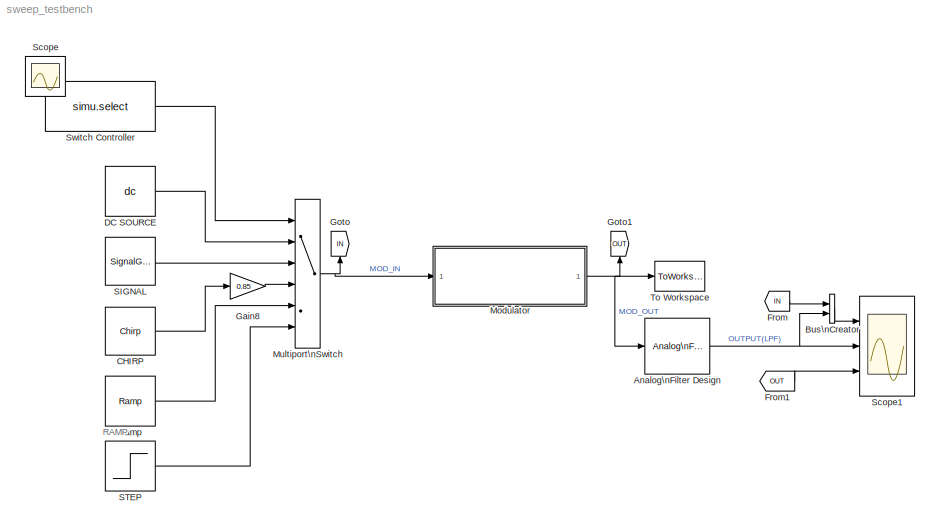
MODEL sweep_testbench
KIND model
BLOCK [Reference] Analog\nFilter Design  REF=dsparch4/Analog\nFilter Design
  AttributesFormatString = Low-pass filter the loop output\\nto illustrate intuitively how the\\npulse density modulated +1/-1\\noutput stream does capture\\nthe input signal
  N = 8
  Ports = [1, 1]
  Rp = 2
  Rs = 40
  SID = 42
  SourceBlock = dsparch4/Analog\nFilter Design
  SourceProductBaseCode = DS
  SourceProductName = DSP System Toolbox
  SourceType = Analog Filter Design
  Whi = 80
  Wlo = pi*(Fs/OSR)
  filttype = Lowpass
  method = Butterworth
BLOCK [BusCreator] Bus\nCreator
  DisplayOption = bar
  InheritFromInputs = on
  Inputs = 2
  Ports = [2, 1]
  SID = 63
BLOCK [Reference] CHIRP  REF=dspsrcs4/Chirp
  OutputFrames = on
  Ports = [0, 1]
  SID = 60
  SourceBlock = dspsrcs4/Chirp
  SourceProductBaseCode = DS
  SourceProductName = DSP System Toolbox
  SourceType = Chirp
  Ts = 1/Fs
  Tsweep = simu.trantime/10
  datatype = Double
  f0 = 1
  f1 = Fs/(OSR)
  mode = Unidirectional
  phase = 0
  spf = 1
  sweep = Linear
  t1 = simu.trantime/10
BLOCK [Constant] DC SOURCE
  SID = 5
  SampleTime = 1/Fs
  Value = dc
BLOCK [From] From
  GotoTag = IN
  SID = 49
BLOCK [From] From1
  GotoTag = OUT
  SID = 50
BLOCK [Gain] Gain8
  Gain = 0.85
  OutDataTypeStr = Inherit: Inherit via internal rule
  ParamDataTypeStr = Inherit: Inherit via internal rule
  SID = 54
  SampleTime = 1/Fs
  SaturateOnIntegerOverflow = off
BLOCK [Goto] Goto
  GotoTag = IN
  SID = 45
BLOCK [Goto] Goto1
  GotoTag = OUT
  SID = 52
BLOCK [ModelReference] Modulator
  ModelNameDialog = mod3_CRFF_CTExample.mdl
  ModelReferenceVersion = 1.122
  Ports = [1, 1]
  SID = 2
  Variant = off
BLOCK [MultiPortSwitch] Multiport\nSwitch
  InputSameDT = off
  Inputs = 5
  Ports = [6, 1]
  SID = 41
  SampleTime = 1/Fs
  SaturateOnIntegerOverflow = off
BLOCK [Reference] Ramp  REF=simulink/Sources/Ramp
  Ports = [0, 1]
  SID = 37
  SourceBlock = simulink/Sources/Ramp
  SourceProductBaseCode = SL
  SourceProductName = Simulink
  SourceType = Ramp
  VectorParams1D = on
  X0 = 0
  slope = 140
  start = 1/300
BLOCK [SignalGenerator] SIGNAL
  Amplitude = sinamp
  Frequency = sinfreq
  Ports = [0, 1]
  SID = 38
  VectorParams1D = off
BLOCK [Step] STEP
  After = 0.88
  SID = 55
  SampleTime = 0
  Time = 9.6e-3
BLOCK [Scope] Scope
  IOType = viewer
  NumInputPorts = 1
  Ports = []
  SID = 15
  ScopeSpecificationString = C++SS(StrPVP('Location','[114, 100, 927, 698]'),StrPVP('Open','off'),StrPVP('ZoomMode','xonly'),MxPVP('AxesTitles',53,'struct(''axes1'',''%<SignalLabel>'')'),StrPVP('ShowDataMarkers','off'),StrPVP('ShowLegends','off'),StrPVP('MaxDataPoints','7500'),StrPVP('LimitDataPoints','on'),StrPVP('DataFormat','Array'),StrPVP('Decimation','1'),StrPVP('BlockParamSampleInput','off'))
BLOCK [Scope] Scope1
  NumInputPorts = 3
  Ports = [3]
  SID = 44
  ScopeSpecificationString = C++SS(StrPVP('Location','[210, 76, 875, 637]'),StrPVP('Open','off'),StrPVP('ZoomMode','xonly'),MxPVP('AxesTitles',53,'struct(''axes1'',''INPUT, OUTPUT (LPF)'',''axes2'',''OUTPUT (LPF)'',''axes3'',''MODULATOR_OUTPUT'')'),MxPVP('ScopeGraphics',56,'struct(''FigureColor'',''[1 1 1]'',''AxesColor'',''[1 1 1]'',''AxesTickColor'',''[0 0 0]'',''LineColors'',''[1 0 0;1 0 1;0 1 1;1 0 0;0 1 0;0 0 1]'',''Line...<+426ch>
BLOCK [Constant] Switch Controller
  SID = 9
  SampleTime = 1/Fs
  Value = simu.select
BLOCK [ToWorkspace] To Workspace
  MaxDataPoints = 50000000
  Ports = [1]
  SID = 1
  SampleTime = 1/Fs
  VariableName = mod_out
ANNOTATION (root): RAMP
NET Analog\nFilter Design:1 -> Bus\nCreator:2, Scope1:2
LINE Bus\nCreator:1 -> Scope1:1
LINE CHIRP:1 -> Gain8:1
LINE DC SOURCE:1 -> Multiport\nSwitch:2
LINE From1:1 -> Scope1:3
LINE From:1 -> Bus\nCreator:1
LINE Gain8:1 -> Multiport\nSwitch:4
NET Modulator:1 -> Analog\nFilter Design:1, Goto1:1, To Workspace:1
NET Multiport\nSwitch:1 -> Goto:1, Modulator:1
LINE Ramp:1 -> Multiport\nSwitch:5
LINE SIGNAL:1 -> Multiport\nSwitch:3
LINE STEP:1 -> Multiport\nSwitch:6
LINE Switch Controller:1 -> Multiport\nSwitch:1
note: NET lines group one-source signal fan-out (src -> all destinations, sorted); 1:1 wires keep LINE
